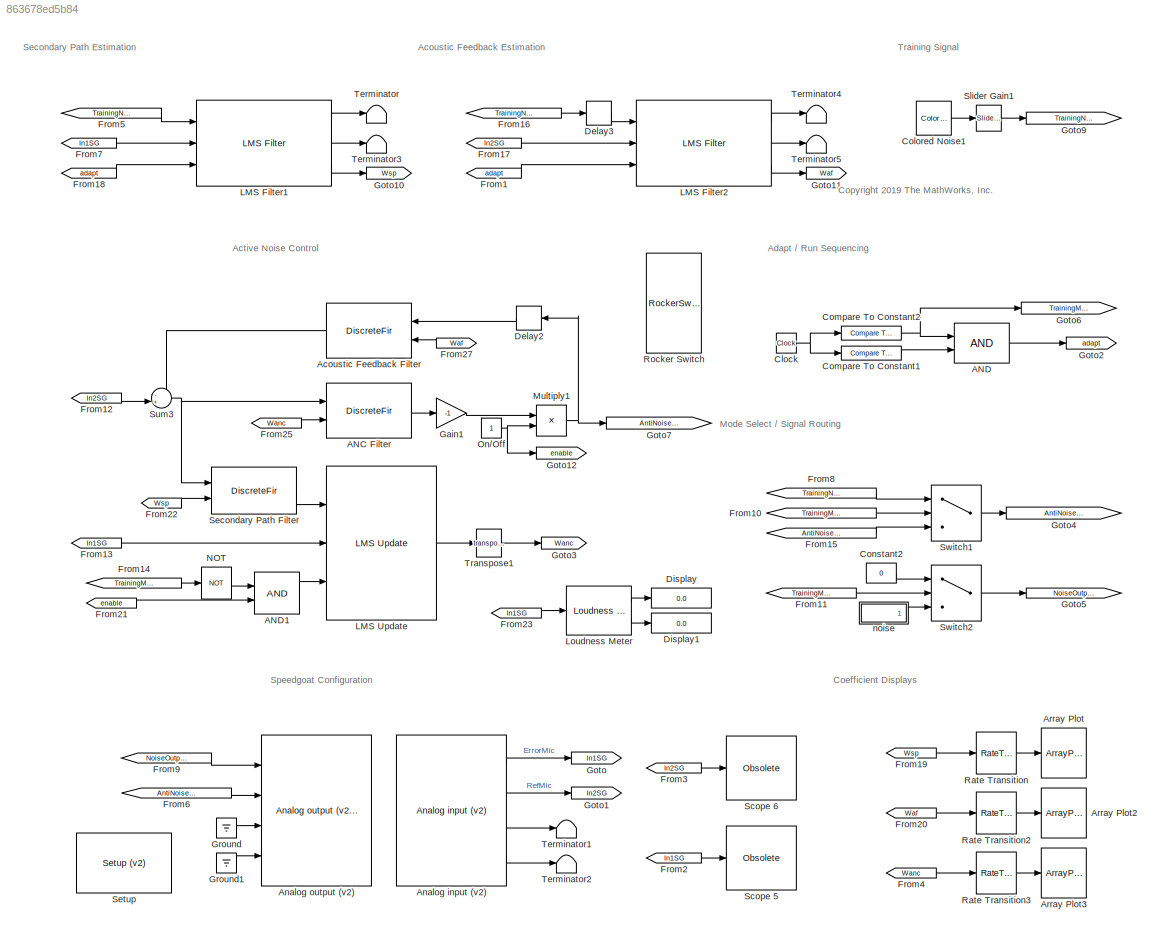
MODEL slx_863678ed5b84
KIND model
CONFIG AbsTol = auto
CONFIG EnableMultiTasking = off
CONFIG FixedStep = auto
CONFIG InitFcn = L = 512;\nFS = 8000; \n%[noise,FS] = audioread('washing8kmod.wav');\n
CONFIG MaxStep = auto
CONFIG MinStep = auto
CONFIG RelTol = 1e-3
CONFIG SampleTimeConstraint = Unconstrained
CONFIG SolverName = FixedStepDiscrete
CONFIG StartTime = 0.0
CONFIG StopFcn = %postCallback;
CONFIG StopTime = inf
BLOCK [DiscreteFir] ANC Filter
  CoefSource = Input port
  InputPortMap = u0,u1
  OutputPortMap = o0
  Ports = [2, 1]
BLOCK [Logic] AND
  AllPortsSameDT = off
  IconShape = distinctive
  OutDataTypeStr = boolean
  Ports = [2, 1]
BLOCK [Logic] AND1
  AllPortsSameDT = off
  IconShape = distinctive
  OutDataTypeStr = boolean
  Ports = [2, 1]
BLOCK [DiscreteFir] Acoustic Feedback Filter
  CoefSource = Input port
  InputPortMap = u0,u1
  OutputPortMap = o0
  Ports = [2, 1]
BLOCK [Reference] Analog input (v2)   REF=speedgoatlib_IO104/Analog input (v2) 
  Ports = [0, 4]
  SourceBlock = speedgoatlib_IO104/Analog input (v2)
  SourceType = ad_IO104_v2
BLOCK [Reference] Analog output (v2)   REF=speedgoatlib_IO104/Analog output (v2) 
  Ports = [4]
  SourceBlock = speedgoatlib_IO104/Analog output (v2)
  SourceType = da_IO104_v2
BLOCK [ArrayPlot] Array Plot
  AxesScaling = Manual
  DefaultConfigurationName = dsp.scopes.ArrayPlotBlockSpecification
  GraphicalSettings = {'Style':{'AxesColor':[0,0,0],'LabelsColor':[0.686274509803922,0.686274509803922,0.686274509803922]}}
  Ports = [1]
  ScopeFrameLocation = window
  WasSavedAsWebScope = on
  WindowPosition = [4.000000,380.000000,1912.000000,441.000000,]
  YLimits = [-0.599393,0.958712]
BLOCK [ArrayPlot] Array Plot2
  AxesScaling = Manual
  DefaultConfigurationName = dsp.scopes.ArrayPlotBlockSpecification
  GraphicalSettings = {'Style':{'AxesColor':[0,0,0],'LabelsColor':[0.686274509803922,0.686274509803922,0.686274509803922]}}
  Ports = [1]
  WasSavedAsWebScope = on
  WindowPosition = [4 369 1913 463]
  YLimits = [-0.150075,0.145128]
BLOCK [ArrayPlot] Array Plot3
  AxesScaling = Manual
  DefaultConfigurationName = dsp.scopes.ArrayPlotBlockSpecification
  GraphicalSettings = {'Style':{'AxesColor':[0,0,0],'LabelsColor':[0.686274509803922,0.686274509803922,0.686274509803922]}}
  Ports = [1]
  ScopeFrameLocation = window
  WasSavedAsWebScope = on
  WindowPosition = [2702.000000,114.000000,976.000000,429.000000,]
  YLimits = [-0.0225492,0.059565]
BLOCK [Clock] Clock
BLOCK [Reference] Colored Noise1  REF=dspsrcs4/Colored Noise
  Ports = [0, 1]
  SourceBlock = dspsrcs4/Colored Noise
  SourceProductBaseCode = DS
  SourceType = dsp.simulink.ColoredNoise
BLOCK [Reference] Compare To Constant1  REF=simulink/Logic and Bit
Operations/Compare
To Constant
  Ports = [1, 1]
  SourceBlock = simulink/Logic and Bit\nOperations/Compare\nTo Constant
  SourceProductBaseCode = SL
  SourceType = Compare To Constant
BLOCK [Reference] Compare To Constant2  REF=simulink/Logic and Bit
Operations/Compare
To Constant
  Ports = [1, 1]
  SourceBlock = simulink/Logic and Bit\nOperations/Compare\nTo Constant
  SourceProductBaseCode = SL
  SourceType = Compare To Constant
BLOCK [Constant] Constant2
  Value = 0
BLOCK [Delay] Delay2
  DelayLength = 1
  InputPortMap = u0
  Ports = [1, 1]
BLOCK [Delay] Delay3
  DelayLength = 1
  InputPortMap = u0
  Ports = [1, 1]
BLOCK [Display] Display
  Decimation = 1
  Ports = [1]
BLOCK [Display] Display1
  Decimation = 1
  Ports = [1]
BLOCK [From] From1
  GotoTag = adapt
BLOCK [From] From10
  GotoTag = TrainingMode
BLOCK [From] From11
  GotoTag = TrainingMode
BLOCK [From] From12
  GotoTag = In2SG
BLOCK [From] From13
  GotoTag = In1SG
BLOCK [From] From14
  GotoTag = TrainingMode
BLOCK [From] From15
  GotoTag = AntiNoiseAdapt
BLOCK [From] From16
  GotoTag = TrainingNoise
BLOCK [From] From17
  GotoTag = In2SG
BLOCK [From] From18
  GotoTag = adapt
BLOCK [From] From19
  GotoTag = Wsp
BLOCK [From] From2
  GotoTag = In1SG
BLOCK [From] From20
  GotoTag = Waf
BLOCK [From] From21
  GotoTag = enable
BLOCK [From] From22
  GotoTag = Wsp
BLOCK [From] From23
  GotoTag = In1SG
BLOCK [From] From25
  GotoTag = Wanc
BLOCK [From] From27
  GotoTag = Waf
BLOCK [From] From3
  GotoTag = In2SG
BLOCK [From] From4
  GotoTag = Wanc
BLOCK [From] From5
  GotoTag = TrainingNoise
BLOCK [From] From6
  GotoTag = AntiNoiseOutput
BLOCK [From] From7
  GotoTag = In1SG
BLOCK [From] From8
  GotoTag = TrainingNoise
BLOCK [From] From9
  GotoTag = NoiseOutput
BLOCK [Gain] Gain1
  Gain = -1
BLOCK [Goto] Goto
  GotoTag = In1SG
BLOCK [Goto] Goto1
  GotoTag = In2SG
BLOCK [Goto] Goto10
  GotoTag = Wsp
BLOCK [Goto] Goto11
  GotoTag = Waf
BLOCK [Goto] Goto12
  GotoTag = enable
BLOCK [Goto] Goto2
  GotoTag = adapt
BLOCK [Goto] Goto3
  GotoTag = Wanc
BLOCK [Goto] Goto4
  GotoTag = AntiNoiseOutput
BLOCK [Goto] Goto5
  GotoTag = NoiseOutput
BLOCK [Goto] Goto6
  GotoTag = TrainingMode
BLOCK [Goto] Goto7
  GotoTag = AntiNoiseAdapt
BLOCK [Goto] Goto9
  GotoTag = TrainingNoise
BLOCK [Ground] Ground
BLOCK [Ground] Ground1
BLOCK [Reference] LMS Filter1  REF=dspadpt3/LMS Filter
  Ports = [3, 3]
  SourceBlock = dspadpt3/LMS Filter
  SourceProductBaseCode = DS
  SourceType = LMS Filter
BLOCK [Reference] LMS Filter2  REF=dspadpt3/LMS Filter
  Ports = [3, 3]
  SourceBlock = dspadpt3/LMS Filter
  SourceProductBaseCode = DS
  SourceType = LMS Filter
BLOCK [Reference] LMS Update  REF=dspadpt3/LMS Update
  Ports = [3, 1]
  SourceBlock = dspadpt3/LMS Update
  SourceProductBaseCode = DS
  SourceType = dsp.simulink.LMSUpdate
BLOCK [Reference] Loudness Meter  REF=audiomeasurements/Loudness Meter
  Ports = [1, 2]
  SourceBlock = audiomeasurements/Loudness Meter
  SourceProductBaseCode = AU
  SourceType = audio.simulink.LoudnessMeter
BLOCK [Product] Multiply1
  Ports = [2, 1]
BLOCK [Logic] NOT
  AllPortsSameDT = off
  IconShape = distinctive
  Operator = NOT
  OutDataTypeStr = boolean
  Ports = [1, 1]
BLOCK [Constant] On//Off
BLOCK [RateTransition] Rate Transition
  Deterministic = off
  OutPortSampleTime = 1/16
BLOCK [RateTransition] Rate Transition2
  Deterministic = off
  OutPortSampleTime = 1/16
BLOCK [RateTransition] Rate Transition3
  Deterministic = off
  OutPortSampleTime = 1/16
BLOCK [RockerSwitchBlock] Rocker Switch
  LabelPosition = Hide
BLOCK [Reference] Scope 5  REF=slrealtimeobsoletelib/Obsolete
  Ports = [1]
  SourceBlock = slrealtimeobsoletelib/Obsolete
  SourceProductBaseCode = XP
  SourceType = Obsolete Simulink Real-Time Block
BLOCK [Reference] Scope 6  REF=slrealtimeobsoletelib/Obsolete
  Ports = [1]
  SourceBlock = slrealtimeobsoletelib/Obsolete
  SourceProductBaseCode = XP
  SourceType = Obsolete Simulink Real-Time Block
BLOCK [DiscreteFir] Secondary Path Filter
  CoefSource = Input port
  InputPortMap = u0,u1
  OutputPortMap = o0
  Ports = [2, 1]
BLOCK [Reference] Setup  REF=speedgoatlib_IO104/Setup (v2) 
  Ports = []
  SourceBlock = speedgoatlib_IO104/Setup (v2)
  SourceType = setup_IO104_v2
BLOCK [Reference] Slider Gain1  REF=simulink/Math
Operations/Slider
Gain
  Ports = [1, 1]
  SourceBlock = simulink/Math\nOperations/Slider\nGain
  SourceProductBaseCode = SL
  SourceType = Slider Gain
BLOCK [Sum] Sum3
  Inputs = -+|
  Ports = [2, 1]
BLOCK [Switch] Switch1
  Criteria = u2 ~= 0
  InputSameDT = off
  SaturateOnIntegerOverflow = off
  Threshold = 5
BLOCK [Switch] Switch2
  Criteria = u2 ~= 0
  InputSameDT = off
  SaturateOnIntegerOverflow = off
  Threshold = 5
BLOCK [Terminator] Terminator
BLOCK [Terminator] Terminator1
BLOCK [Terminator] Terminator2
BLOCK [Terminator] Terminator3
BLOCK [Terminator] Terminator4
BLOCK [Terminator] Terminator5
BLOCK [Math] Transpose1
  Operator = transpose
  Ports = [1, 1]
  SignedPower = on
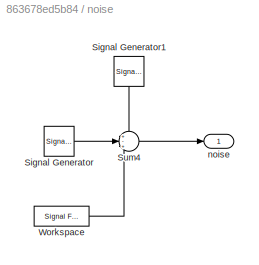
BLOCK [SubSystem] noise
  Ports = [0, 1]
  RequestExecContextInheritance = off
BLOCK [SignalGenerator] noise/Signal Generator
  Amplitude = .2
  Frequency = 150
  Ports = [0, 1]
BLOCK [SignalGenerator] noise/Signal Generator1
  Amplitude = .15
  Frequency = 225
  NameLocation = left
  Ports = [0, 1]
BLOCK [Sum] noise/Sum4
  Inputs = +-+
  Ports = [3, 1]
BLOCK [Reference] noise/Workspace  REF=dspsrcs4/Signal From
Workspace
  Commented = on
  Ports = [0, 1]
  SourceBlock = dspsrcs4/Signal From\nWorkspace
  SourceProductBaseCode = DS
  SourceType = Signal From Workspace
BLOCK [Outport] noise/noise
  VectorParamsAs1DForOutWhenUnconnected = off
ANNOTATION (root): <copyright redacted>
ANNOTATION (root): Acoustic Feedback Estimation
ANNOTATION (root): Active Noise Control
ANNOTATION (root): Adapt / Run Sequencing
ANNOTATION (root): Coefficient Displays
ANNOTATION (root): Mode Select / Signal Routing
ANNOTATION (root): Secondary Path Estimation
ANNOTATION (root): Speedgoat Configuration
ANNOTATION (root): Training Signal
LINE ANC Filter:1 -> Gain1:1
LINE AND1:1 -> LMS Update:3
LINE AND:1 -> Goto2:1
LINE Acoustic Feedback Filter:1 -> Sum3:1
LINE Analog input (v2) :1 -> Goto:1
LINE Analog input (v2) :2 -> Goto1:1
LINE Analog input (v2) :3 -> Terminator1:1
LINE Analog input (v2) :4 -> Terminator2:1
NET Clock:1 -> Compare To Constant1:1, Compare To Constant2:1
LINE Colored Noise1:1 -> Slider Gain1:1
LINE Compare To Constant1:1 -> AND:2
NET Compare To Constant2:1 -> AND:1, Goto6:1
LINE Constant2:1 -> Switch2:1
LINE Delay2:1 -> Acoustic Feedback Filter:1
LINE Delay3:1 -> LMS Filter2:1
LINE From10:1 -> Switch1:2
LINE From11:1 -> Switch2:2
LINE From12:1 -> Sum3:2
LINE From13:1 -> LMS Update:2
LINE From14:1 -> NOT:1
LINE From15:1 -> Switch1:3
LINE From16:1 -> Delay3:1
LINE From17:1 -> LMS Filter2:2
LINE From18:1 -> LMS Filter1:3
LINE From19:1 -> Rate Transition:1
LINE From1:1 -> LMS Filter2:3
LINE From20:1 -> Rate Transition2:1
LINE From21:1 -> AND1:2
LINE From22:1 -> Secondary Path Filter:2
LINE From23:1 -> Loudness Meter:1
LINE From25:1 -> ANC Filter:2
LINE From27:1 -> Acoustic Feedback Filter:2
LINE From2:1 -> Scope 5:1
LINE From3:1 -> Scope 6:1
LINE From4:1 -> Rate Transition3:1
LINE From5:1 -> LMS Filter1:1
LINE From6:1 -> Analog output (v2) :2
LINE From7:1 -> LMS Filter1:2
LINE From8:1 -> Switch1:1
LINE From9:1 -> Analog output (v2) :1
LINE Gain1:1 -> Multiply1:1
LINE Ground1:1 -> Analog output (v2) :4
LINE Ground:1 -> Analog output (v2) :3
LINE LMS Filter1:1 -> Terminator:1
LINE LMS Filter1:2 -> Terminator3:1
LINE LMS Filter1:3 -> Goto10:1
LINE LMS Filter2:1 -> Terminator4:1
LINE LMS Filter2:2 -> Terminator5:1
LINE LMS Filter2:3 -> Goto11:1
LINE LMS Update:1 -> Transpose1:1
LINE Loudness Meter:1 -> Display:1
LINE Loudness Meter:2 -> Display1:1
NET Multiply1:1 -> Delay2:1, Goto7:1
LINE NOT:1 -> AND1:1
NET On//Off:1 -> Goto12:1, Multiply1:2
LINE Rate Transition2:1 -> Array Plot2:1
LINE Rate Transition3:1 -> Array Plot3:1
LINE Rate Transition:1 -> Array Plot:1
LINE Secondary Path Filter:1 -> LMS Update:1
LINE Slider Gain1:1 -> Goto9:1
NET Sum3:1 -> ANC Filter:1, Secondary Path Filter:1
LINE Switch1:1 -> Goto4:1
LINE Switch2:1 -> Goto5:1
LINE Transpose1:1 -> Goto3:1
LINE noise/Signal Generator1:1 -> noise/Sum4:1
LINE noise/Signal Generator:1 -> noise/Sum4:2
LINE noise/Sum4:1 -> noise/noise:1
LINE noise/Workspace:1 -> noise/Sum4:3
LINE noise:1 -> Switch2:3
note: NET lines group one-source signal fan-out (src -> all destinations, sorted); 1:1 wires keep LINE
